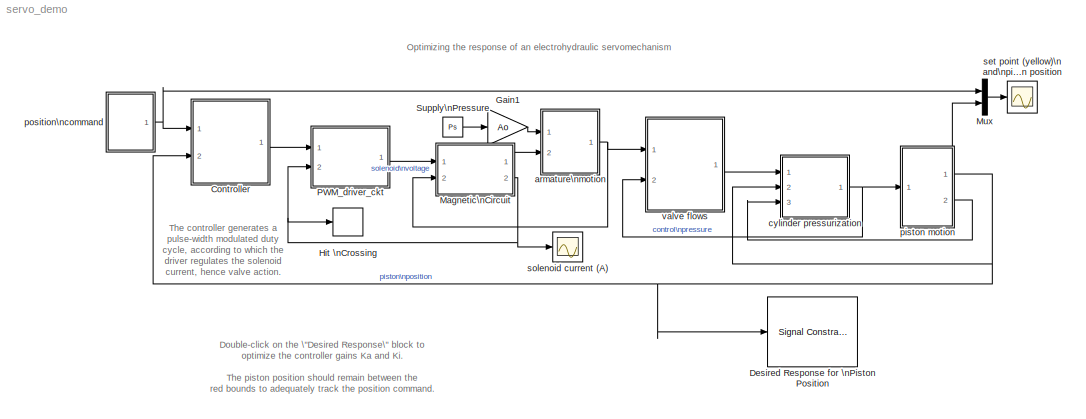
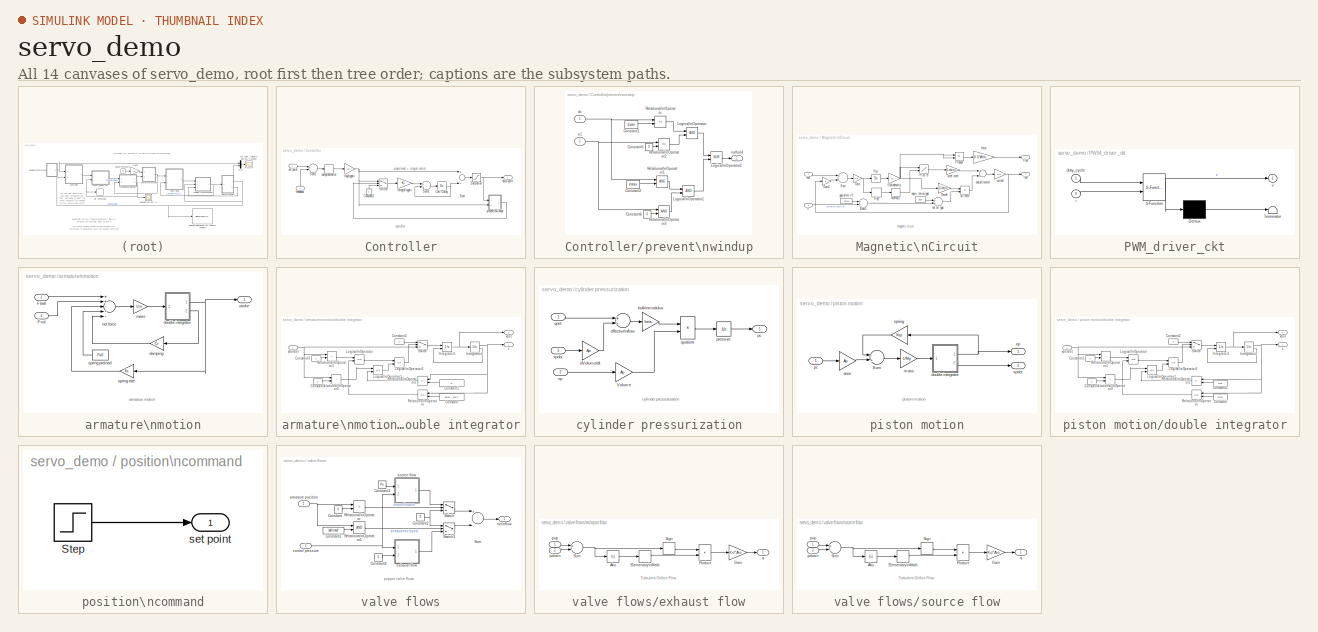
[diagram: thumbnail index - all 14 canvases of the model, root first then tree order]
MODEL servo_demo
KIND model
CONFIG PreLoadFcn = load servo_demo
BLOCK [SubSystem] Controller
  MinAlgLoopOccurrences = off
  Ports = [2, 1]
  PropExecContextAcrossSSBoundary = on
  RTWSystemCode = Auto
  TreatAsAtomicUnit = off
BLOCK [Constant] Controller/Constant5
  Value = 0
BLOCK [Saturate] Controller/Saturation
  LowerLimit = dcmin
  UpperLimit = dcmax
BLOCK [Sum] Controller/Sum
  Ports = [2, 1]
BLOCK [Sum] Controller/Sum1
  Inputs = +-
  Ports = [2, 1]
BLOCK [Sum] Controller/Sum2
  Ports = [2, 1]
BLOCK [Switch] Controller/Switch
  Threshold = 0.5
BLOCK [UnitDelay] Controller/Unit Delay
  SampleTime = 0.02
  X0 = dcnull
BLOCK [Outport] Controller/duty cycle
  BusOutputAsStruct = off
  IconDisplay = Port number
  InitialOutput = 0
BLOCK [Inport] Controller/feedback
  IconDisplay = Port number
  LatchInput = off
  Port = 2
BLOCK [Gain] Controller/integral\ngain
  Gain = Ki
BLOCK [Gain] Controller/loop\ngain
  Gain = Ka
BLOCK [SubSystem] Controller/prevent\nwindup
  MinAlgLoopOccurrences = off
  Ports = [2, 1]
  PropExecContextAcrossSSBoundary = on
  RTWSystemCode = Auto
  TreatAsAtomicUnit = off
BLOCK [Constant] Controller/prevent\nwindup/Constant1
  Value = dcmin
BLOCK [Constant] Controller/prevent\nwindup/Constant2
  Value = dcmax
BLOCK [Constant] Controller/prevent\nwindup/Constant5
  Value = 0
BLOCK [Constant] Controller/prevent\nwindup/Constant6
  Value = 0
BLOCK [Logic] Controller/prevent\nwindup/Logical\nOperator
  Ports = [2, 1]
BLOCK [Logic] Controller/prevent\nwindup/Logical\nOperator1
  Ports = [2, 1]
BLOCK [Logic] Controller/prevent\nwindup/Logical\nOperator2
  Operator = NOR
  Ports = [2, 1]
BLOCK [RelationalOperator] Controller/prevent\nwindup/Relational\nOperator
  Operator = <=
BLOCK [RelationalOperator] Controller/prevent\nwindup/Relational\nOperator1
BLOCK [RelationalOperator] Controller/prevent\nwindup/Relational\nOperator2
  Operator = <=
BLOCK [RelationalOperator] Controller/prevent\nwindup/Relational\nOperator3
BLOCK [Inport] Controller/prevent\nwindup/dc
  IconDisplay = Port number
  LatchInput = off
BLOCK [Inport] Controller/prevent\nwindup/e1
  IconDisplay = Port number
  LatchInput = off
  Port = 2
BLOCK [Outport] Controller/prevent\nwindup/nothold
  BusOutputAsStruct = off
  IconDisplay = Port number
  InitialOutput = 0
BLOCK [ZeroOrderHold] Controller/sampled\nerror
  SampleTime = 0.02
BLOCK [Inport] Controller/set point
  IconDisplay = Port number
  LatchInput = off
BLOCK [Reference] Desired Response for \nPiston Position  REF=srolib/Signal Constraint  (lib defined in mdl_d992e5ea460a)
  DialogPosition = [0.031875 0.296666666666667 0.3725 0.275833333333333]
  LogID = SRO_DataLog_1
  Ports = [1]
  SaveAs = servo_optim
  SaveIn = workspace
  ShowPortLabels = on
  SourceBlock = srolib/Signal Constraint
  SourceType = Signal Constraint
BLOCK [Gain] Gain1
  Gain = Ao
BLOCK [HitCross] Hit \nCrossing
  HitCrossingDirection = either
  HitCrossingOffset = [0, Ipull, (Ihold + deltai), (Ihold - deltai)]
  Ports = [1]
  ShowOutputPort = off
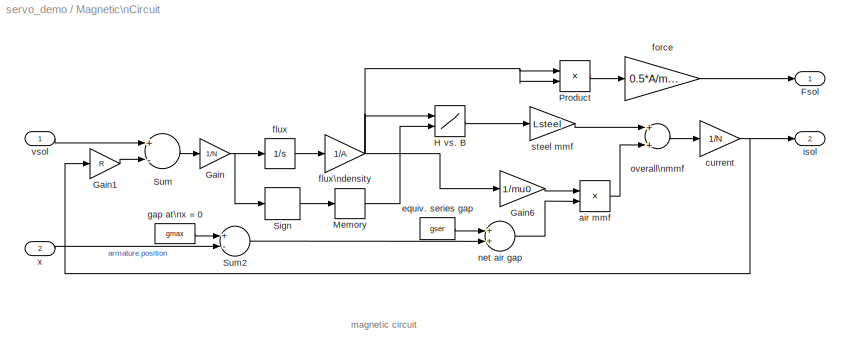
BLOCK [SubSystem] Magnetic\nCircuit
  MinAlgLoopOccurrences = off
  Ports = [2, 2]
  PropExecContextAcrossSSBoundary = on
  RTWSystemCode = Auto
  TreatAsAtomicUnit = off
BLOCK [Outport] Magnetic\nCircuit/Fsol
  BusOutputAsStruct = off
  IconDisplay = Port number
  InitialOutput = 0
BLOCK [Gain] Magnetic\nCircuit/Gain
  Gain = 1/N
BLOCK [Gain] Magnetic\nCircuit/Gain1
  Gain = R
BLOCK [Gain] Magnetic\nCircuit/Gain6
  Gain = 1/mu0
BLOCK [Lookup2D] Magnetic\nCircuit/H vs. B
  ColumnIndex = [-1 1]
  DialogController = Simulink.DDGSource
  OutputValues = Hdata'
  RowIndex = Bvalues
BLOCK [Memory] Magnetic\nCircuit/Memory
BLOCK [Product] Magnetic\nCircuit/Product
  Ports = [2, 1]
BLOCK [Signum] Magnetic\nCircuit/Sign
BLOCK [Sum] Magnetic\nCircuit/Sum
  Inputs = +-
  Ports = [2, 1]
BLOCK [Sum] Magnetic\nCircuit/Sum2
  Inputs = +-
  Ports = [2, 1]
BLOCK [Product] Magnetic\nCircuit/air mmf
  Ports = [2, 1]
BLOCK [Gain] Magnetic\nCircuit/current
  Gain = 1/N
BLOCK [Constant] Magnetic\nCircuit/equiv. series gap
  Value = gser
BLOCK [Integrator] Magnetic\nCircuit/flux
  LowerSaturationLimit = 0
  Ports = [1, 1]
BLOCK [Gain] Magnetic\nCircuit/flux\ndensity
  Gain = 1/A
BLOCK [Gain] Magnetic\nCircuit/force
  Gain = 0.5*A/mu0
BLOCK [Constant] Magnetic\nCircuit/gap at\nx = 0
  Value = gmax
BLOCK [Outport] Magnetic\nCircuit/isol
  BusOutputAsStruct = off
  IconDisplay = Port number
  InitialOutput = 0
  Port = 2
BLOCK [Sum] Magnetic\nCircuit/net air gap
  Ports = [2, 1]
BLOCK [Sum] Magnetic\nCircuit/overall\nmmf
  Ports = [2, 1]
BLOCK [Gain] Magnetic\nCircuit/steel mmf
  Gain = Lsteel
BLOCK [Inport] Magnetic\nCircuit/vsol
  IconDisplay = Port number
  LatchInput = off
BLOCK [Inport] Magnetic\nCircuit/x
  IconDisplay = Port number
  LatchInput = off
  Port = 2
BLOCK [Mux] Mux
  Inputs = 2
  Ports = [2, 1]
BLOCK [SubSystem] PWM_driver_ckt
  MaskDescription = Stateflow diagram
  MaskDisplay = plot(sf('Private','sfblk','xIcon'),sf('Private','sfblk','yIcon'));text(0.5,0,sf('Private', 'sfblk', 'tIcon'),'HorizontalAl','Center','VerticalAl','Bottom');
  MaskIconFrame = off
  MaskIconOpaque = off
  MaskIconRotate = none
  MaskIconUnits = autoscale
  MaskSelfModifiable = on
  MaskType = Stateflow
  MinAlgLoopOccurrences = off
  Ports = [2, 1]
  PropExecContextAcrossSSBoundary = on
  RTWSystemCode = Auto
  TreatAsAtomicUnit = off
BLOCK [Demux] PWM_driver_ckt/ Demux 
  Outputs = 1
  Ports = [1, 1]
BLOCK [S-Function] PWM_driver_ckt/ SFunction 
  FunctionName = sf_sfun
  Parameters = Ihold,Ipull,Tpwm,Vd,Vs,Vz,deltai
  PortCounts = [2 2]
  Ports = [2, 2]
  Tag = Stateflow S-Function servo_demo 1
BLOCK [Terminator] PWM_driver_ckt/ Terminator 
BLOCK [Inport] PWM_driver_ckt/duty_cycle
  IconDisplay = Port number
  LatchInput = off
BLOCK [Inport] PWM_driver_ckt/i
  IconDisplay = Port number
  LatchInput = off
  Port = 2
BLOCK [Outport] PWM_driver_ckt/v
  BusOutputAsStruct = off
  IconDisplay = Port number
BLOCK [Constant] Supply\nPressure
  Value = Ps
BLOCK [SubSystem] armature\nmotion
  MinAlgLoopOccurrences = off
  Ports = [2, 1]
  PropExecContextAcrossSSBoundary = on
  RTWSystemCode = Auto
  TreatAsAtomicUnit = off
BLOCK [Inport] armature\nmotion/Fball
  IconDisplay = Port number
  LatchInput = off
BLOCK [Inport] armature\nmotion/Fsol
  IconDisplay = Port number
  LatchInput = off
  Port = 2
BLOCK [Gain] armature\nmotion/damping
  Gain = Cv
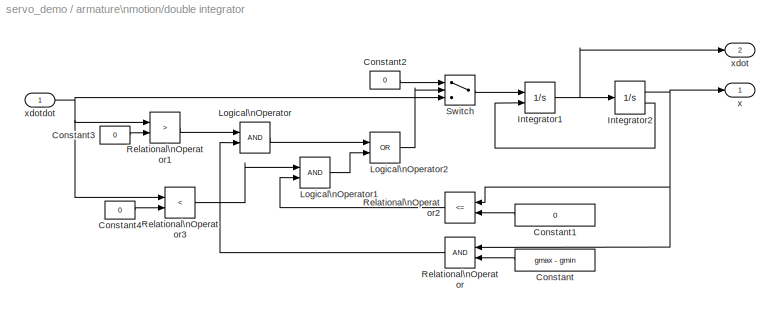
BLOCK [SubSystem] armature\nmotion/double integrator
  MinAlgLoopOccurrences = off
  Ports = [1, 2]
  PropExecContextAcrossSSBoundary = on
  RTWSystemCode = Auto
  TreatAsAtomicUnit = off
BLOCK [Constant] armature\nmotion/double integrator/Constant
  Value = gmax - gmin
BLOCK [Constant] armature\nmotion/double integrator/Constant1
  Value = 0
BLOCK [Constant] armature\nmotion/double integrator/Constant2
  Value = 0
BLOCK [Constant] armature\nmotion/double integrator/Constant3
  Value = 0
BLOCK [Constant] armature\nmotion/double integrator/Constant4
  Value = 0
BLOCK [Integrator] armature\nmotion/double integrator/Integrator1
  ExternalReset = rising
  LowerSaturationLimit = Inf
  Ports = [2, 1]
BLOCK [Integrator] armature\nmotion/double integrator/Integrator2
  LimitOutput = on
  LowerSaturationLimit = 0
  Ports = [1, 2]
  ShowSaturationPort = on
  UpperSaturationLimit = gmax - gmin
BLOCK [Logic] armature\nmotion/double integrator/Logical\nOperator
  Ports = [2, 1]
BLOCK [Logic] armature\nmotion/double integrator/Logical\nOperator1
  Ports = [2, 1]
BLOCK [Logic] armature\nmotion/double integrator/Logical\nOperator2
  Operator = OR
  Ports = [2, 1]
BLOCK [RelationalOperator] armature\nmotion/double integrator/Relational\nOperator
BLOCK [RelationalOperator] armature\nmotion/double integrator/Relational\nOperator1
  Operator = >
BLOCK [RelationalOperator] armature\nmotion/double integrator/Relational\nOperator2
  Operator = <=
BLOCK [RelationalOperator] armature\nmotion/double integrator/Relational\nOperator3
  Operator = <
BLOCK [Switch] armature\nmotion/double integrator/Switch
  Threshold = 0.5
BLOCK [Outport] armature\nmotion/double integrator/x
  BusOutputAsStruct = off
  IconDisplay = Port number
  InitialOutput = 0
BLOCK [Outport] armature\nmotion/double integrator/xdot
  BusOutputAsStruct = off
  IconDisplay = Port number
  InitialOutput = 0
  Port = 2
BLOCK [Inport] armature\nmotion/double integrator/xdotdot
  IconDisplay = Port number
  LatchInput = off
BLOCK [Gain] armature\nmotion/mass
  Gain = 1/m
BLOCK [Sum] armature\nmotion/net force
  Inputs = ++---
  Ports = [5, 1]
BLOCK [Constant] armature\nmotion/spring preload
  Value = Fs0
BLOCK [Gain] armature\nmotion/spring rate
  Gain = Ks
BLOCK [Outport] armature\nmotion/stroke
  BusOutputAsStruct = off
  IconDisplay = Port number
  InitialOutput = 0
BLOCK [SubSystem] cylinder pressurization
  MinAlgLoopOccurrences = off
  Ports = [3, 1]
  PropExecContextAcrossSSBoundary = on
  RTWSystemCode = Auto
  TreatAsAtomicUnit = off
BLOCK [Gain] cylinder pressurization/Volume
  Gain = Ap
BLOCK [Gain] cylinder pressurization/bulk\nmodulus
  Gain = beta
BLOCK [Gain] cylinder pressurization/dVolume//dt
  Gain = Ap
BLOCK [Sum] cylinder pressurization/effective\nflow
  Inputs = +-
  Ports = [2, 1]
BLOCK [Outport] cylinder pressurization/pc
  BusOutputAsStruct = off
  IconDisplay = Port number
  InitialOutput = 0
BLOCK [Integrator] cylinder pressurization/pressure
  LimitOutput = on
  LowerSaturationLimit = 0
  Ports = [1, 1]
BLOCK [Inport] cylinder pressurization/qnet
  IconDisplay = Port number
  LatchInput = off
BLOCK [Product] cylinder pressurization/quotient
  Inputs = */
  Ports = [2, 1]
BLOCK [Inport] cylinder pressurization/xp
  IconDisplay = Port number
  LatchInput = off
  Port = 2
BLOCK [Inport] cylinder pressurization/xpdot
  IconDisplay = Port number
  LatchInput = off
  Port = 3
BLOCK [SubSystem] piston motion
  MinAlgLoopOccurrences = off
  Ports = [1, 2]
  PropExecContextAcrossSSBoundary = on
  RTWSystemCode = Auto
  TreatAsAtomicUnit = off
BLOCK [Sum] piston motion/Sum
  Inputs = -+
  Ports = [2, 1]
BLOCK [Gain] piston motion/area
  Gain = Ap
BLOCK [SubSystem] piston motion/double integrator
  MaskCallbackString = |||||
  MaskEnableString = on,on,on,on,on,on
  MaskIconFrame = on
  MaskIconOpaque = on
  MaskIconRotate = none
  MaskIconUnits = autoscale
  MaskPromptString = initial position|minimum position|maximum position|initial velocity|minimum velocity|maximum velocity
  MaskStyleString = edit,edit,edit,edit,edit,edit
  MaskTabNameString = ,,,,,
  MaskToolTipString = on,on,on,on,on,on
  MaskTunableValueString = on,on,on,on,on,on
  MaskValueString = xpmin|xpmin|xpmax|0|-Inf|Inf
  MaskVarAliasString = ,,,,,
  MaskVariables = x0=@1;xmin=@2;xmax=@3;xdot0=@4;xdotmin=@5;xdotmax=@6;
  MaskVisibilityString = on,on,on,on,on,on
  MinAlgLoopOccurrences = off
  Ports = [1, 2]
  PropExecContextAcrossSSBoundary = on
  RTWSystemCode = Auto
  TreatAsAtomicUnit = off
BLOCK [Constant] piston motion/double integrator/Constant
  Value = xmax
BLOCK [Constant] piston motion/double integrator/Constant1
  Value = xmin
BLOCK [Constant] piston motion/double integrator/Constant2
  Value = 0
BLOCK [Constant] piston motion/double integrator/Constant3
  Value = 0
BLOCK [Constant] piston motion/double integrator/Constant4
  Value = 0
BLOCK [Integrator] piston motion/double integrator/Integrator1
  ExternalReset = rising
  InitialCondition = xdot0
  LowerSaturationLimit = xdotmin
  Ports = [2, 1]
  UpperSaturationLimit = xdotmax
BLOCK [Integrator] piston motion/double integrator/Integrator2
  InitialCondition = x0
  LimitOutput = on
  LowerSaturationLimit = xmin
  Ports = [1, 2]
  ShowSaturationPort = on
  UpperSaturationLimit = xmax
BLOCK [Logic] piston motion/double integrator/Logical\nOperator
  Ports = [2, 1]
BLOCK [Logic] piston motion/double integrator/Logical\nOperator1
  Ports = [2, 1]
BLOCK [Logic] piston motion/double integrator/Logical\nOperator2
  Operator = OR
  Ports = [2, 1]
BLOCK [RelationalOperator] piston motion/double integrator/Relational\nOperator
BLOCK [RelationalOperator] piston motion/double integrator/Relational\nOperator1
  Operator = >
BLOCK [RelationalOperator] piston motion/double integrator/Relational\nOperator2
  Operator = <=
BLOCK [RelationalOperator] piston motion/double integrator/Relational\nOperator3
  Operator = <
BLOCK [Switch] piston motion/double integrator/Switch
  Threshold = 0.5
BLOCK [Outport] piston motion/double integrator/x
  BusOutputAsStruct = off
  IconDisplay = Port number
  InitialOutput = 0
BLOCK [Outport] piston motion/double integrator/xdot
  BusOutputAsStruct = off
  IconDisplay = Port number
  InitialOutput = 0
  Port = 2
BLOCK [Inport] piston motion/double integrator/xdotdot
  IconDisplay = Port number
  LatchInput = off
BLOCK [Gain] piston motion/mass
  Gain = 1/Mp
BLOCK [Inport] piston motion/pc
  IconDisplay = Port number
  LatchInput = off
BLOCK [Gain] piston motion/spring
  Gain = Ksp
BLOCK [Outport] piston motion/xp
  BusOutputAsStruct = off
  IconDisplay = Port number
  InitialOutput = 0
BLOCK [Outport] piston motion/xpdot
  BusOutputAsStruct = off
  IconDisplay = Port number
  InitialOutput = 0
  Port = 2
BLOCK [SubSystem] position\ncommand
  MinAlgLoopOccurrences = off
  Ports = [0, 1]
  PropExecContextAcrossSSBoundary = on
  RTWSystemCode = Auto
  TreatAsAtomicUnit = off
BLOCK [Step] position\ncommand/Step
  After = 0.015
  Before = 0.01
  SampleTime = 0
  Time = .5
BLOCK [Outport] position\ncommand/set point
  BusOutputAsStruct = off
  IconDisplay = Port number
  InitialOutput = 0
BLOCK [Scope] set point (yellow)\nand\npiston position
  DataFormat = Array
  MaxDataPoints = 5e4
  NumInputPorts = 1
  Ports = [1]
  TickLabels = on
  YMax = 0.0175
  YMin = 0.002
BLOCK [Scope] solenoid current (A)
  DataFormat = Array
  MaxDataPoints = 5e4
  NumInputPorts = 1
  Ports = [1]
  TickLabels = on
  TimeRange = 0.02
  YMax = 2.75
  YMin = -0.25
BLOCK [SubSystem] valve flows
  MinAlgLoopOccurrences = off
  Ports = [2, 1]
  PropExecContextAcrossSSBoundary = on
  RTWSystemCode = Auto
  TreatAsAtomicUnit = off
BLOCK [Constant] valve flows/Constant
  Value = 0
BLOCK [Constant] valve flows/Constant1
  Value = balltravel
BLOCK [Constant] valve flows/Constant2
  Value = 0
BLOCK [Constant] valve flows/Constant3
  Value = Ps
BLOCK [Constant] valve flows/Constant4
  Value = 0
BLOCK [RelationalOperator] valve flows/Relational\nOperator
  Operator = >
BLOCK [RelationalOperator] valve flows/Relational\nOperator1
BLOCK [Sum] valve flows/Sum
  Inputs = +-
  Ports = [2, 1]
BLOCK [Switch] valve flows/Switch
  Threshold = 0.5
BLOCK [Switch] valve flows/Switch1
  Threshold = 0.5
BLOCK [Inport] valve flows/armature position
  IconDisplay = Port number
  LatchInput = off
BLOCK [Inport] valve flows/control pressure
  IconDisplay = Port number
  LatchInput = off
  Port = 2
BLOCK [SubSystem] valve flows/exhaust flow
  MaskCallbackString = |
  MaskDisplay = plot(-0.75,-1.25,0.75,1.25,[0 0],[1 -1],0.5*cos(-pi/4:.1:pi/4)-0.55, 0.5*sin(-pi/4:.1:pi/4),-0.5*cos(-pi/4:.1:pi/4)+0.55, 0.5*sin(-pi/4:.1:pi/4))
  MaskEnableString = on,on
  MaskIconFrame = on
  MaskIconOpaque = off
  MaskIconRotate = none
  MaskIconUnits = autoscale
  MaskPromptString = flow coefficient|orifice area
  MaskStyleString = edit,edit
  MaskTabNameString = ,
  MaskToolTipString = on,on
  MaskTunableValueString = on,on
  MaskType = turbulent orifice flow
  MaskValueString = Ko|Ao
  MaskVarAliasString = ,
  MaskVariables = Ko=@1;Ao=@2;
  MaskVisibilityString = on,on
  MinAlgLoopOccurrences = off
  Ports = [2, 1]
  PropExecContextAcrossSSBoundary = on
  RTWSystemCode = Auto
  TreatAsAtomicUnit = off
BLOCK [Abs] valve flows/exhaust flow/Abs
BLOCK [ElementaryMath] valve flows/exhaust flow/Elementary\nMath
  Operator = sqrt
  Ports = [1, 1]
BLOCK [Gain] valve flows/exhaust flow/Gain
  Gain = Ko*Ao
BLOCK [Product] valve flows/exhaust flow/Product
  Ports = [2, 1]
BLOCK [Signum] valve flows/exhaust flow/Sign
BLOCK [Sum] valve flows/exhaust flow/Sum
  Inputs = +-
  Ports = [2, 1]
BLOCK [Inport] valve flows/exhaust flow/pdown
  IconDisplay = Port number
  LatchInput = off
  Port = 2
BLOCK [Inport] valve flows/exhaust flow/pup
  IconDisplay = Port number
  LatchInput = off
BLOCK [Outport] valve flows/exhaust flow/q
  BusOutputAsStruct = off
  IconDisplay = Port number
  InitialOutput = 0
BLOCK [Outport] valve flows/net\nflow
  BusOutputAsStruct = off
  IconDisplay = Port number
  InitialOutput = 0
BLOCK [SubSystem] valve flows/source flow
  MaskCallbackString = |
  MaskDisplay = plot(-0.75,-1.25,0.75,1.25,[0 0],[1 -1],0.5*cos(-pi/4:.1:pi/4)-0.55, 0.5*sin(-pi/4:.1:pi/4),-0.5*cos(-pi/4:.1:pi/4)+0.55, 0.5*sin(-pi/4:.1:pi/4))
  MaskEnableString = on,on
  MaskIconFrame = on
  MaskIconOpaque = off
  MaskIconRotate = none
  MaskIconUnits = autoscale
  MaskPromptString = flow coefficient|orifice area
  MaskStyleString = edit,edit
  MaskTabNameString = ,
  MaskToolTipString = on,on
  MaskTunableValueString = on,on
  MaskType = turbulent orifice flow
  MaskValueString = Ko|Ao
  MaskVarAliasString = ,
  MaskVariables = Ko=@1;Ao=@2;
  MaskVisibilityString = on,on
  MinAlgLoopOccurrences = off
  Ports = [2, 1]
  PropExecContextAcrossSSBoundary = on
  RTWSystemCode = Auto
  TreatAsAtomicUnit = off
BLOCK [Abs] valve flows/source flow/Abs
BLOCK [ElementaryMath] valve flows/source flow/Elementary\nMath
  Operator = sqrt
  Ports = [1, 1]
BLOCK [Gain] valve flows/source flow/Gain
  Gain = Ko*Ao
BLOCK [Product] valve flows/source flow/Product
  Ports = [2, 1]
BLOCK [Signum] valve flows/source flow/Sign
BLOCK [Sum] valve flows/source flow/Sum
  Inputs = +-
  Ports = [2, 1]
BLOCK [Inport] valve flows/source flow/pdown
  IconDisplay = Port number
  LatchInput = off
  Port = 2
BLOCK [Inport] valve flows/source flow/pup
  IconDisplay = Port number
  LatchInput = off
BLOCK [Outport] valve flows/source flow/q
  BusOutputAsStruct = off
  IconDisplay = Port number
  InitialOutput = 0
ANNOTATION (root): Double-click on the \"Desired Response\" block to \noptimize the controller gains Ka and Ki.\n\nThe piston position should remain between the \nred bounds to adequately track the position command.
ANNOTATION (root): Optimizing the response of an electrohydraulic servomechanism
ANNOTATION (root): The controller generates a\npulse-width modulated duty\ncycle, according to which the\ndriver regulates the solenoid\ncurrent, hence valve action.
ANNOTATION Controller: controller
ANNOTATION Controller: proportional + integral control
ANNOTATION Magnetic\nCircuit: magnetic circuit
ANNOTATION armature\nmotion: armature motion
ANNOTATION cylinder pressurization: cylinder pressurization
ANNOTATION piston motion: piston motion
ANNOTATION valve flows: poppet valve flows
ANNOTATION valve flows/exhaust flow: Turbulent Orifice Flow
ANNOTATION valve flows/source flow: Turbulent Orifice Flow
LINE Controller/Constant5:1 -> Controller/Switch:3
NET Controller/Saturation:1 -> Controller/duty cycle:1, Controller/prevent\nwindup:1
LINE Controller/Sum1:1 -> Controller/sampled\nerror:1
LINE Controller/Sum2:1 -> Controller/Unit Delay:1
LINE Controller/Sum:1 -> Controller/Saturation:1
LINE Controller/Switch:1 -> Controller/integral\ngain:1
NET Controller/Unit Delay:1 -> Controller/Sum2:2, Controller/Sum:2
LINE Controller/feedback:1 -> Controller/Sum1:2
LINE Controller/integral\ngain:1 -> Controller/Sum2:1
NET Controller/loop\ngain:1 -> Controller/Sum:1, Controller/Switch:1, Controller/prevent\nwindup:2
LINE Controller/prevent\nwindup/Constant1:1 -> Controller/prevent\nwindup/Relational\nOperator:2
LINE Controller/prevent\nwindup/Constant2:1 -> Controller/prevent\nwindup/Relational\nOperator1:2
LINE Controller/prevent\nwindup/Constant5:1 -> Controller/prevent\nwindup/Relational\nOperator2:2
LINE Controller/prevent\nwindup/Constant6:1 -> Controller/prevent\nwindup/Relational\nOperator3:2
LINE Controller/prevent\nwindup/Logical\nOperator1:1 -> Controller/prevent\nwindup/Logical\nOperator2:2
LINE Controller/prevent\nwindup/Logical\nOperator2:1 -> Controller/prevent\nwindup/nothold:1
LINE Controller/prevent\nwindup/Logical\nOperator:1 -> Controller/prevent\nwindup/Logical\nOperator2:1
LINE Controller/prevent\nwindup/Relational\nOperator1:1 -> Controller/prevent\nwindup/Logical\nOperator1:1
LINE Controller/prevent\nwindup/Relational\nOperator2:1 -> Controller/prevent\nwindup/Logical\nOperator:2
LINE Controller/prevent\nwindup/Relational\nOperator3:1 -> Controller/prevent\nwindup/Logical\nOperator1:2
LINE Controller/prevent\nwindup/Relational\nOperator:1 -> Controller/prevent\nwindup/Logical\nOperator:1
NET Controller/prevent\nwindup/dc:1 -> Controller/prevent\nwindup/Relational\nOperator1:1, Controller/prevent\nwindup/Relational\nOperator:1
NET Controller/prevent\nwindup/e1:1 -> Controller/prevent\nwindup/Relational\nOperator2:1, Controller/prevent\nwindup/Relational\nOperator3:1
LINE Controller/prevent\nwindup:1 -> Controller/Switch:2
LINE Controller/sampled\nerror:1 -> Controller/loop\ngain:1
LINE Controller/set point:1 -> Controller/Sum1:1
LINE Controller:1 -> PWM_driver_ckt:1
LINE Gain1:1 -> armature\nmotion:1
LINE Magnetic\nCircuit/Gain1:1 -> Magnetic\nCircuit/Sum:2
LINE Magnetic\nCircuit/Gain6:1 -> Magnetic\nCircuit/air mmf:1
NET Magnetic\nCircuit/Gain:1 -> Magnetic\nCircuit/Sign:1, Magnetic\nCircuit/flux:1
LINE Magnetic\nCircuit/H vs. B:1 -> Magnetic\nCircuit/steel mmf:1
LINE Magnetic\nCircuit/Memory:1 -> Magnetic\nCircuit/H vs. B:2
LINE Magnetic\nCircuit/Product:1 -> Magnetic\nCircuit/force:1
LINE Magnetic\nCircuit/Sign:1 -> Magnetic\nCircuit/Memory:1
LINE Magnetic\nCircuit/Sum2:1 -> Magnetic\nCircuit/net air gap:2
LINE Magnetic\nCircuit/Sum:1 -> Magnetic\nCircuit/Gain:1
LINE Magnetic\nCircuit/air mmf:1 -> Magnetic\nCircuit/overall\nmmf:2
NET Magnetic\nCircuit/current:1 -> Magnetic\nCircuit/Gain1:1, Magnetic\nCircuit/isol:1
LINE Magnetic\nCircuit/equiv. series gap:1 -> Magnetic\nCircuit/net air gap:1
LINE Magnetic\nCircuit/flux:1 -> Magnetic\nCircuit/flux\ndensity:1
NET Magnetic\nCircuit/flux\ndensity:1 -> Magnetic\nCircuit/Gain6:1, Magnetic\nCircuit/H vs. B:1, Magnetic\nCircuit/Product:1, Magnetic\nCircuit/Product:2
LINE Magnetic\nCircuit/force:1 -> Magnetic\nCircuit/Fsol:1
LINE Magnetic\nCircuit/gap at\nx = 0:1 -> Magnetic\nCircuit/Sum2:1
LINE Magnetic\nCircuit/net air gap:1 -> Magnetic\nCircuit/air mmf:2
LINE Magnetic\nCircuit/overall\nmmf:1 -> Magnetic\nCircuit/current:1
LINE Magnetic\nCircuit/steel mmf:1 -> Magnetic\nCircuit/overall\nmmf:1
LINE Magnetic\nCircuit/vsol:1 -> Magnetic\nCircuit/Sum:1
LINE Magnetic\nCircuit/x:1 -> Magnetic\nCircuit/Sum2:2
LINE Magnetic\nCircuit:1 -> armature\nmotion:2
NET Magnetic\nCircuit:2 -> Hit \nCrossing:1, PWM_driver_ckt:2, solenoid current (A):1
LINE Mux:1 -> set point (yellow)\nand\npiston position:1
LINE PWM_driver_ckt/ Demux :1 -> PWM_driver_ckt/ Terminator :1
LINE PWM_driver_ckt/ SFunction :1 -> PWM_driver_ckt/ Demux :1
LINE PWM_driver_ckt/ SFunction :2 -> PWM_driver_ckt/v:1
LINE PWM_driver_ckt/duty_cycle:1 -> PWM_driver_ckt/ SFunction :1
LINE PWM_driver_ckt/i:1 -> PWM_driver_ckt/ SFunction :2
LINE PWM_driver_ckt:1 -> Magnetic\nCircuit:1
LINE Supply\nPressure:1 -> Gain1:1
LINE armature\nmotion/Fball:1 -> armature\nmotion/net force:1
LINE armature\nmotion/Fsol:1 -> armature\nmotion/net force:2
LINE armature\nmotion/damping:1 -> armature\nmotion/net force:5
LINE armature\nmotion/double integrator/Constant1:1 -> armature\nmotion/double integrator/Relational\nOperator2:2
LINE armature\nmotion/double integrator/Constant2:1 -> armature\nmotion/double integrator/Switch:1
LINE armature\nmotion/double integrator/Constant3:1 -> armature\nmotion/double integrator/Relational\nOperator1:2
LINE armature\nmotion/double integrator/Constant4:1 -> armature\nmotion/double integrator/Relational\nOperator3:2
LINE armature\nmotion/double integrator/Constant:1 -> armature\nmotion/double integrator/Relational\nOperator:2
NET armature\nmotion/double integrator/Integrator1:1 -> armature\nmotion/double integrator/Integrator2:1, armature\nmotion/double integrator/xdot:1
NET armature\nmotion/double integrator/Integrator2:1 -> armature\nmotion/double integrator/Relational\nOperator2:1, armature\nmotion/double integrator/Relational\nOperator:1, armature\nmotion/double integrator/x:1
LINE armature\nmotion/double integrator/Integrator2:2 -> armature\nmotion/double integrator/Integrator1:2
LINE armature\nmotion/double integrator/Logical\nOperator1:1 -> armature\nmotion/double integrator/Logical\nOperator2:2
LINE armature\nmotion/double integrator/Logical\nOperator2:1 -> armature\nmotion/double integrator/Switch:2
LINE armature\nmotion/double integrator/Logical\nOperator:1 -> armature\nmotion/double integrator/Logical\nOperator2:1
LINE armature\nmotion/double integrator/Relational\nOperator1:1 -> armature\nmotion/double integrator/Logical\nOperator:1
LINE armature\nmotion/double integrator/Relational\nOperator2:1 -> armature\nmotion/double integrator/Logical\nOperator1:2
LINE armature\nmotion/double integrator/Relational\nOperator3:1 -> armature\nmotion/double integrator/Logical\nOperator1:1
LINE armature\nmotion/double integrator/Relational\nOperator:1 -> armature\nmotion/double integrator/Logical\nOperator:2
LINE armature\nmotion/double integrator/Switch:1 -> armature\nmotion/double integrator/Integrator1:1
NET armature\nmotion/double integrator/xdotdot:1 -> armature\nmotion/double integrator/Relational\nOperator1:1, armature\nmotion/double integrator/Relational\nOperator3:1, armature\nmotion/double integrator/Switch:3
NET armature\nmotion/double integrator:1 -> armature\nmotion/spring rate:1, armature\nmotion/stroke:1
LINE armature\nmotion/double integrator:2 -> armature\nmotion/damping:1
LINE armature\nmotion/mass:1 -> armature\nmotion/double integrator:1
LINE armature\nmotion/net force:1 -> armature\nmotion/mass:1
LINE armature\nmotion/spring preload:1 -> armature\nmotion/net force:4
LINE armature\nmotion/spring rate:1 -> armature\nmotion/net force:3
NET armature\nmotion:1 -> Magnetic\nCircuit:2, valve flows:1
LINE cylinder pressurization/Volume:1 -> cylinder pressurization/quotient:2
LINE cylinder pressurization/bulk\nmodulus:1 -> cylinder pressurization/quotient:1
LINE cylinder pressurization/dVolume//dt:1 -> cylinder pressurization/effective\nflow:2
LINE cylinder pressurization/effective\nflow:1 -> cylinder pressurization/bulk\nmodulus:1
LINE cylinder pressurization/pressure:1 -> cylinder pressurization/pc:1
LINE cylinder pressurization/qnet:1 -> cylinder pressurization/effective\nflow:1
LINE cylinder pressurization/quotient:1 -> cylinder pressurization/pressure:1
LINE cylinder pressurization/xp:1 -> cylinder pressurization/Volume:1
LINE cylinder pressurization/xpdot:1 -> cylinder pressurization/dVolume//dt:1
NET cylinder pressurization:1 -> piston motion:1, valve flows:2
LINE piston motion/Sum:1 -> piston motion/mass:1
LINE piston motion/area:1 -> piston motion/Sum:2
LINE piston motion/double integrator/Constant1:1 -> piston motion/double integrator/Relational\nOperator2:2
LINE piston motion/double integrator/Constant2:1 -> piston motion/double integrator/Switch:1
LINE piston motion/double integrator/Constant3:1 -> piston motion/double integrator/Relational\nOperator1:2
LINE piston motion/double integrator/Constant4:1 -> piston motion/double integrator/Relational\nOperator3:2
LINE piston motion/double integrator/Constant:1 -> piston motion/double integrator/Relational\nOperator:2
NET piston motion/double integrator/Integrator1:1 -> piston motion/double integrator/Integrator2:1, piston motion/double integrator/xdot:1
NET piston motion/double integrator/Integrator2:1 -> piston motion/double integrator/Relational\nOperator2:1, piston motion/double integrator/Relational\nOperator:1, piston motion/double integrator/x:1
LINE piston motion/double integrator/Integrator2:2 -> piston motion/double integrator/Integrator1:2
LINE piston motion/double integrator/Logical\nOperator1:1 -> piston motion/double integrator/Logical\nOperator2:2
LINE piston motion/double integrator/Logical\nOperator2:1 -> piston motion/double integrator/Switch:2
LINE piston motion/double integrator/Logical\nOperator:1 -> piston motion/double integrator/Logical\nOperator2:1
LINE piston motion/double integrator/Relational\nOperator1:1 -> piston motion/double integrator/Logical\nOperator:1
LINE piston motion/double integrator/Relational\nOperator2:1 -> piston motion/double integrator/Logical\nOperator1:2
LINE piston motion/double integrator/Relational\nOperator3:1 -> piston motion/double integrator/Logical\nOperator1:1
LINE piston motion/double integrator/Relational\nOperator:1 -> piston motion/double integrator/Logical\nOperator:2
LINE piston motion/double integrator/Switch:1 -> piston motion/double integrator/Integrator1:1
NET piston motion/double integrator/xdotdot:1 -> piston motion/double integrator/Relational\nOperator1:1, piston motion/double integrator/Relational\nOperator3:1, piston motion/double integrator/Switch:3
NET piston motion/double integrator:1 -> piston motion/spring:1, piston motion/xp:1
LINE piston motion/double integrator:2 -> piston motion/xpdot:1
LINE piston motion/mass:1 -> piston motion/double integrator:1
LINE piston motion/pc:1 -> piston motion/area:1
LINE piston motion/spring:1 -> piston motion/Sum:1
NET piston motion:1 -> Controller:2, Desired Response for \nPiston Position:1, Mux:2, cylinder pressurization:2
LINE piston motion:2 -> cylinder pressurization:3
LINE position\ncommand/Step:1 -> position\ncommand/set point:1
NET position\ncommand:1 -> Controller:1, Mux:1
LINE valve flows/Constant1:1 -> valve flows/Relational\nOperator1:2
NET valve flows/Constant2:1 -> valve flows/Switch1:1, valve flows/Switch:3
LINE valve flows/Constant3:1 -> valve flows/source flow:1
LINE valve flows/Constant4:1 -> valve flows/exhaust flow:2
LINE valve flows/Constant:1 -> valve flows/Relational\nOperator:2
LINE valve flows/Relational\nOperator1:1 -> valve flows/Switch1:2
LINE valve flows/Relational\nOperator:1 -> valve flows/Switch:2
LINE valve flows/Sum:1 -> valve flows/net\nflow:1
LINE valve flows/Switch1:1 -> valve flows/Sum:2
LINE valve flows/Switch:1 -> valve flows/Sum:1
NET valve flows/armature position:1 -> valve flows/Relational\nOperator1:1, valve flows/Relational\nOperator:1
NET valve flows/control pressure:1 -> valve flows/exhaust flow:1, valve flows/source flow:2
LINE valve flows/exhaust flow/Abs:1 -> valve flows/exhaust flow/Elementary\nMath:1
LINE valve flows/exhaust flow/Elementary\nMath:1 -> valve flows/exhaust flow/Product:2
LINE valve flows/exhaust flow/Gain:1 -> valve flows/exhaust flow/q:1
LINE valve flows/exhaust flow/Product:1 -> valve flows/exhaust flow/Gain:1
LINE valve flows/exhaust flow/Sign:1 -> valve flows/exhaust flow/Product:1
NET valve flows/exhaust flow/Sum:1 -> valve flows/exhaust flow/Abs:1, valve flows/exhaust flow/Sign:1
LINE valve flows/exhaust flow/pdown:1 -> valve flows/exhaust flow/Sum:2
LINE valve flows/exhaust flow/pup:1 -> valve flows/exhaust flow/Sum:1
LINE valve flows/exhaust flow:1 -> valve flows/Switch1:3
LINE valve flows/source flow/Abs:1 -> valve flows/source flow/Elementary\nMath:1
LINE valve flows/source flow/Elementary\nMath:1 -> valve flows/source flow/Product:2
LINE valve flows/source flow/Gain:1 -> valve flows/source flow/q:1
LINE valve flows/source flow/Product:1 -> valve flows/source flow/Gain:1
LINE valve flows/source flow/Sign:1 -> valve flows/source flow/Product:1
NET valve flows/source flow/Sum:1 -> valve flows/source flow/Abs:1, valve flows/source flow/Sign:1
LINE valve flows/source flow/pdown:1 -> valve flows/source flow/Sum:2
LINE valve flows/source flow/pup:1 -> valve flows/source flow/Sum:1
LINE valve flows/source flow:1 -> valve flows/Switch:1
LINE valve flows:1 -> cylinder pressurization:1
note: NET lines group one-source signal fan-out (src -> all destinations, sorted); 1:1 wires keep LINE
CHART PWM_driver_ckt states=6 transitions=9
  STATE_LABEL 'energize_solenoid'
  STATE_LABEL 'pull_in_current\\nentry : v = Vs;'
  STATE_LABEL 'regulate_hold_current'
  STATE_LABEL 'freewheel\\nentry: v = -(i > 0)*Vd;\\nduring: v = -(i > 0)*Vd;'
  STATE_LABEL 'solenoid_off\\nentry : v = -(i > 0)*Vz;\\nduring: v = -(i > 0)*Vz;'
  STATE_LABEL 'hold/\\nentry : v = Vs;'
